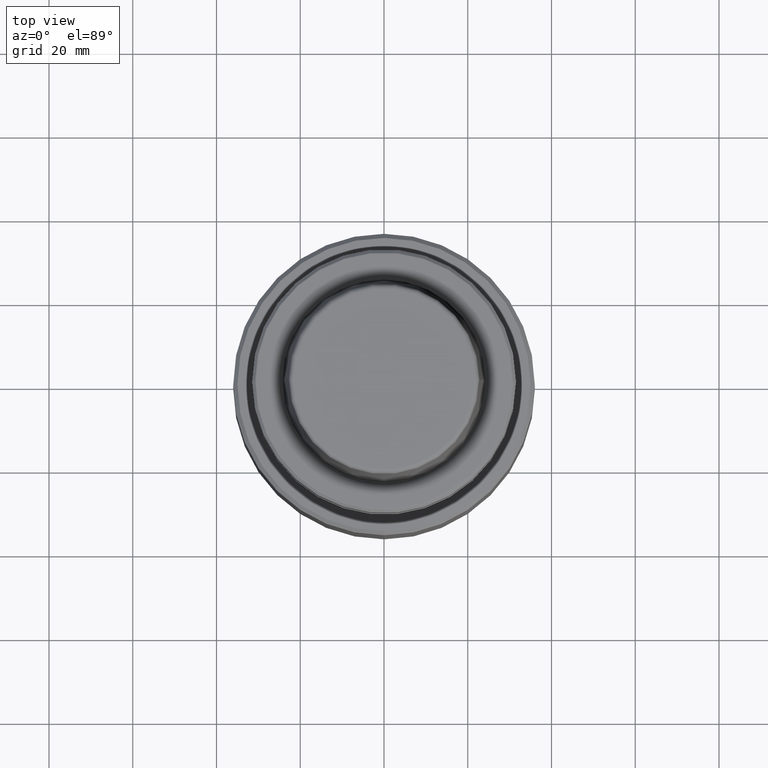
[diagram: clean part render]
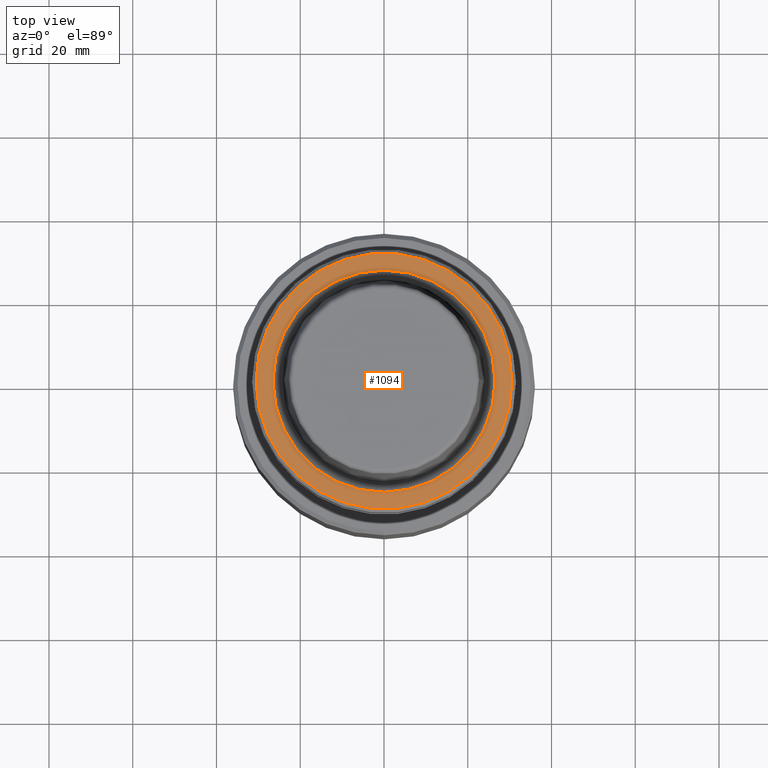
[diagram: same view with one face highlighted and labeled with its STEP entity id]
A machine part, top view. The second image highlights one B-rep face of the part: STEP entity #1094.
In plain terms, the highlighted planar face has unit normal (0, 0, -1).
Its self-contained STEP definition (entity closure, byte-faithful):
#31 = DIRECTION ( 'NONE',  ( 0.0000000000000000000, 0.0000000000000000000, -1.000000000000000000 ) ) ;
#73 = CARTESIAN_POINT ( 'NONE',  ( 26.52499999999999900, 0.0000000000000000000, 0.0000000000000000000 ) ) ;
#107 = DIRECTION ( 'NONE',  ( 1.000000000000000000, 0.0000000000000000000, 0.0000000000000000000 ) ) ;
#215 = AXIS2_PLACEMENT_3D ( 'NONE', #952, #31, #424 ) ;
#245 = DIRECTION ( 'NONE',  ( -0.0000000000000000000, -0.0000000000000000000, 1.000000000000000000 ) ) ;
#286 = CARTESIAN_POINT ( 'NONE',  ( -26.52499999999999900, 3.248375634738354300E-015, 0.0000000000000000000 ) ) ;
#327 = CIRCLE ( 'NONE', #1243, 26.52499999999999900 ) ;
#331 = PLANE ( 'NONE',  #215 ) ;
#424 = DIRECTION ( 'NONE',  ( -1.000000000000000000, 0.0000000000000000000, -0.0000000000000000000 ) ) ;
#462 = ORIENTED_EDGE ( 'NONE', *, *, #1371, .F. ) ;
#473 = DIRECTION ( 'NONE',  ( 1.000000000000000000, 0.0000000000000000000, 0.0000000000000000000 ) ) ;
#493 = EDGE_CURVE ( 'NONE', #523, #522, #602, .T. ) ;
#522 = VERTEX_POINT ( 'NONE', #73 ) ;
#523 = VERTEX_POINT ( 'NONE', #286 ) ;
#599 = ORIENTED_EDGE ( 'NONE', *, *, #493, .F. ) ;
#602 = CIRCLE ( 'NONE', #1274, 26.52499999999999900 ) ;
#656 = EDGE_CURVE ( 'NONE', #968, #950, #739, .T. ) ;
#705 = DIRECTION ( 'NONE',  ( -0.0000000000000000000, -0.0000000000000000000, 1.000000000000000000 ) ) ;
#739 = CIRCLE ( 'NONE', #1095, 30.53431457505076100 ) ;
#753 = EDGE_CURVE ( 'NONE', #950, #968, #1313, .T. ) ;
#812 = DIRECTION ( 'NONE',  ( 1.000000000000000000, 0.0000000000000000000, 0.0000000000000000000 ) ) ;
#889 = AXIS2_PLACEMENT_3D ( 'NONE', #1387, #245, #473 ) ;
#892 = CARTESIAN_POINT ( 'NONE',  ( 30.53431457505076100, 0.0000000000000000000, 0.0000000000000000000 ) ) ;
#901 = EDGE_LOOP ( 'NONE', ( #1152, #1306 ) ) ;
#903 = FACE_OUTER_BOUND ( 'NONE', #901, .T. ) ;
#950 = VERTEX_POINT ( 'NONE', #1006 ) ;
#952 = CARTESIAN_POINT ( 'NONE',  ( 0.0000000000000000000, 26.52499999999999900, -1.111307226797642000E-015 ) ) ;
#955 = FACE_BOUND ( 'NONE', #1002, .T. ) ;
#968 = VERTEX_POINT ( 'NONE', #892 ) ;
#1002 = EDGE_LOOP ( 'NONE', ( #462, #599 ) ) ;
#1006 = CARTESIAN_POINT ( 'NONE',  ( -30.53431457505076100, 3.756694181974138600E-015, 0.0000000000000000000 ) ) ;
#1024 = CARTESIAN_POINT ( 'NONE',  ( 0.0000000000000000000, 0.0000000000000000000, 0.0000000000000000000 ) ) ;
#1094 = ADVANCED_FACE ( 'NONE', ( #955, #903 ), #331, .F. ) ;
#1095 = AXIS2_PLACEMENT_3D ( 'NONE', #1276, #1265, #107 ) ;
#1131 = DIRECTION ( 'NONE',  ( 1.000000000000000000, 0.0000000000000000000, 0.0000000000000000000 ) ) ;
#1152 = ORIENTED_EDGE ( 'NONE', *, *, #656, .T. ) ;
#1243 = AXIS2_PLACEMENT_3D ( 'NONE', #1352, #705, #812 ) ;
#1265 = DIRECTION ( 'NONE',  ( -0.0000000000000000000, -0.0000000000000000000, 1.000000000000000000 ) ) ;
#1274 = AXIS2_PLACEMENT_3D ( 'NONE', #1024, #1300, #1131 ) ;
#1276 = CARTESIAN_POINT ( 'NONE',  ( 0.0000000000000000000, 0.0000000000000000000, 0.0000000000000000000 ) ) ;
#1300 = DIRECTION ( 'NONE',  ( -0.0000000000000000000, -0.0000000000000000000, 1.000000000000000000 ) ) ;
#1306 = ORIENTED_EDGE ( 'NONE', *, *, #753, .T. ) ;
#1313 = CIRCLE ( 'NONE', #889, 30.53431457505076100 ) ;
#1352 = CARTESIAN_POINT ( 'NONE',  ( 0.0000000000000000000, 0.0000000000000000000, 0.0000000000000000000 ) ) ;
#1371 = EDGE_CURVE ( 'NONE', #522, #523, #327, .T. ) ;
#1387 = CARTESIAN_POINT ( 'NONE',  ( 0.0000000000000000000, 0.0000000000000000000, 0.0000000000000000000 ) ) ;